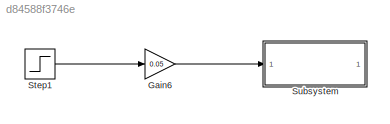
MODEL slx_d84588f3746e
KIND model
CONFIG AbsTol = auto
CONFIG EnableMultiTasking = off
CONFIG FixedStep = auto
CONFIG MaxStep = auto
CONFIG MinStep = auto
CONFIG RelTol = 1e-3
CONFIG SampleTimeConstraint = Unconstrained
CONFIG SolverName = VariableStepAuto
CONFIG StartTime = 0.0
CONFIG StopTime = 10.0
BLOCK [Gain] Gain6
  Gain = 0.05
BLOCK [Step] Step1
  SampleTime = 0
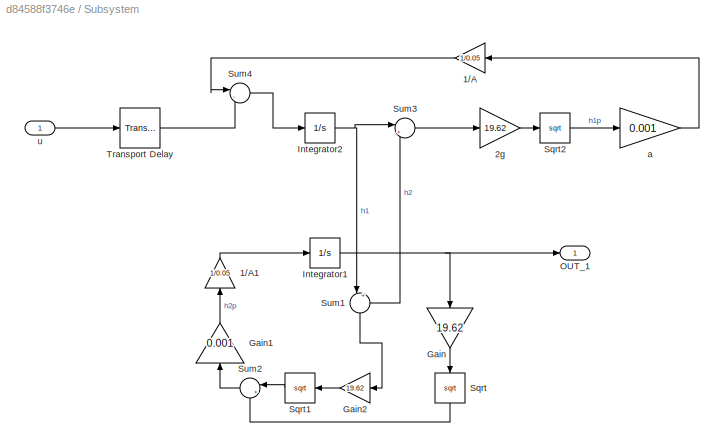
BLOCK [SubSystem] Subsystem
BLOCK [Gain] Subsystem/1//A
  Gain = 1/0.05
BLOCK [Gain] Subsystem/1//A1
  Gain = 1/0.05
  NameLocation = left
BLOCK [Gain] Subsystem/2g
  Gain = 19.62
BLOCK [Gain] Subsystem/Gain
  Gain = 19.62
  NameLocation = left
BLOCK [Gain] Subsystem/Gain1
  Gain = 0.001
  NameLocation = right
BLOCK [Gain] Subsystem/Gain2
  Gain = 19.62
  NameLocation = top
BLOCK [Integrator] Subsystem/Integrator1
BLOCK [Integrator] Subsystem/Integrator2
BLOCK [Outport] Subsystem/OUT_1
BLOCK [Sqrt] Subsystem/Sqrt
  NameLocation = left
BLOCK [Sqrt] Subsystem/Sqrt1
  NameLocation = top
BLOCK [Sqrt] Subsystem/Sqrt2
BLOCK [Sum] Subsystem/Sum1
  Inputs = |+-
  NameLocation = left
BLOCK [Sum] Subsystem/Sum2
  Inputs = |+-
  NameLocation = top
BLOCK [Sum] Subsystem/Sum3
  Inputs = |+-
BLOCK [Sum] Subsystem/Sum4
  Inputs = |-+
BLOCK [TransportDelay] Subsystem/Transport Delay
  DelayTime = 0.005
BLOCK [Gain] Subsystem/a
  Gain = 0.001
BLOCK [Inport] Subsystem/u
LINE Gain6:1 -> Subsystem:1
LINE Step1:1 -> Gain6:1
LINE Subsystem/1//A1:1 -> Subsystem/Integrator1:1
LINE Subsystem/1//A:1 -> Subsystem/Sum4:1
LINE Subsystem/2g:1 -> Subsystem/Sqrt2:1
LINE Subsystem/Gain1:1 -> Subsystem/1//A1:1
LINE Subsystem/Gain2:1 -> Subsystem/Sqrt1:1
LINE Subsystem/Gain:1 -> Subsystem/Sqrt:1
NET Subsystem/Integrator1:1 -> Subsystem/Gain:1, Subsystem/OUT_1:1, Subsystem/Sum1:2, Subsystem/Sum3:2
NET Subsystem/Integrator2:1 -> Subsystem/Sum1:1, Subsystem/Sum3:1
LINE Subsystem/Sqrt1:1 -> Subsystem/Sum2:1
LINE Subsystem/Sqrt2:1 -> Subsystem/a:1
LINE Subsystem/Sqrt:1 -> Subsystem/Sum2:2
LINE Subsystem/Sum1:1 -> Subsystem/Gain2:1
LINE Subsystem/Sum2:1 -> Subsystem/Gain1:1
LINE Subsystem/Sum3:1 -> Subsystem/2g:1
LINE Subsystem/Sum4:1 -> Subsystem/Integrator2:1
LINE Subsystem/Transport Delay:1 -> Subsystem/Sum4:2
LINE Subsystem/a:1 -> Subsystem/1//A:1
LINE Subsystem/u:1 -> Subsystem/Transport Delay:1
note: NET lines group one-source signal fan-out (src -> all destinations, sorted); 1:1 wires keep LINE
